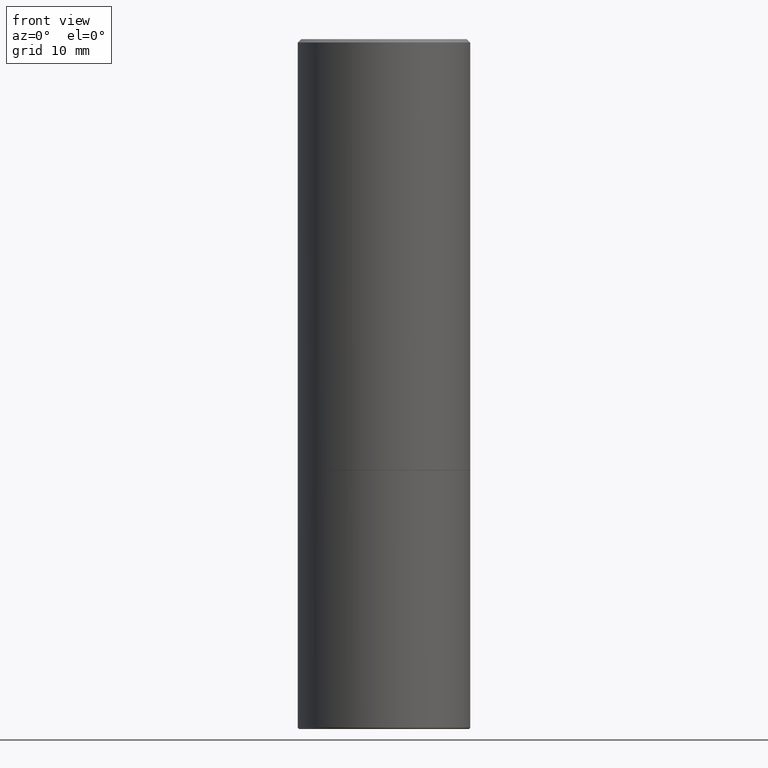
[diagram: clean part render]
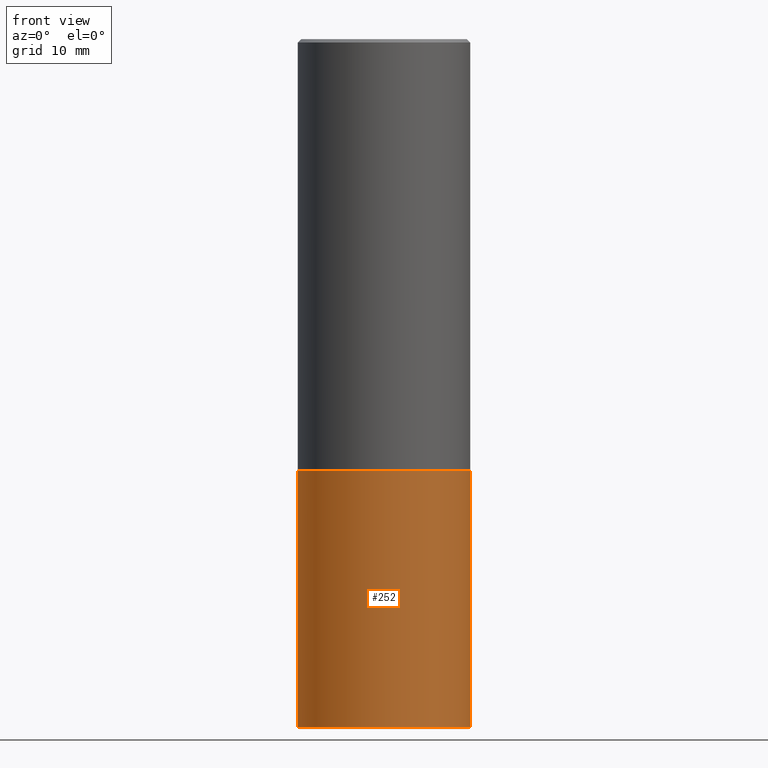
[diagram: same view with one face highlighted and labeled with its STEP entity id]
A machine part, front view. The second image highlights one B-rep face of the part: STEP entity #252.
In plain terms, the highlighted cylindrical surface (partial cylindrical patch) has radius 12.7 mm, axis along (-0, 0, 1).
Its self-contained STEP definition (entity closure, byte-faithful):
#11 = CIRCLE ( 'NONE', #177, 0.5000000000000000000 ) ;
#16 = CARTESIAN_POINT ( 'NONE',  ( -0.5000000000000000000, -1.037829686318364817E-14, -3.989999999999999769 ) ) ;
#21 = CARTESIAN_POINT ( 'NONE',  ( 0.5000000000000000000, -3.491481338843133355E-15, 2.438088387897967896E-29 ) ) ;
#22 = VECTOR ( 'NONE', #53, 39.37007874015748143 ) ;
#28 = AXIS2_PLACEMENT_3D ( 'NONE', #134, #276, #210 ) ;
#53 = DIRECTION ( 'NONE',  ( -2.445468806185136877E-29, 3.491481338843145188E-15, 1.000000000000000000 ) ) ;
#61 = DIRECTION ( 'NONE',  ( -2.445468806185136597E-29, 3.491481338843145583E-15, 1.000000000000000000 ) ) ;
#69 = CARTESIAN_POINT ( 'NONE',  ( -0.5000000000000000000, 3.552713678800500929E-15, -2.459467545127452891E-29 ) ) ;
#77 = ORIENTED_EDGE ( 'NONE', *, *, #186, .F. ) ;
#80 = VECTOR ( 'NONE', #108, 39.37007874015748143 ) ;
#95 = AXIS2_PLACEMENT_3D ( 'NONE', #224, #343, #249 ) ;
#107 = CARTESIAN_POINT ( 'NONE',  ( -0.5000000000000000000, -7.777143265745505305E-15, -2.500000000000000000 ) ) ;
#108 = DIRECTION ( 'NONE',  ( -2.445468806185136877E-29, 3.491481338843145188E-15, 1.000000000000000000 ) ) ;
#134 = CARTESIAN_POINT ( 'NONE',  ( 6.113672015462842613E-29, -8.728703347107864943E-15, -2.500000000000000000 ) ) ;
#135 = VERTEX_POINT ( 'NONE', #272 ) ;
#138 = CIRCLE ( 'NONE', #28, 0.5000000000000000000 ) ;
#171 = ORIENTED_EDGE ( 'NONE', *, *, #201, .T. ) ;
#177 = AXIS2_PLACEMENT_3D ( 'NONE', #396, #61, #243 ) ;
#186 = EDGE_CURVE ( 'NONE', #225, #135, #138, .T. ) ;
#201 = EDGE_CURVE ( 'NONE', #308, #363, #11, .T. ) ;
#210 = DIRECTION ( 'NONE',  ( 1.000000000000000000, -6.982962677686269077E-15, 0.000000000000000000 ) ) ;
#224 = CARTESIAN_POINT ( 'NONE',  ( 0.000000000000000000, 0.000000000000000000, 0.000000000000000000 ) ) ;
#225 = VERTEX_POINT ( 'NONE', #107 ) ;
#241 = EDGE_CURVE ( 'NONE', #308, #225, #337, .T. ) ;
#243 = DIRECTION ( 'NONE',  ( 1.000000000000000000, -6.982962677686266711E-15, 0.000000000000000000 ) ) ;
#249 = DIRECTION ( 'NONE',  ( 1.000000000000000000, -6.982962677686266711E-15, 4.876176775795935793E-29 ) ) ;
#252 = ADVANCED_FACE ( 'NONE', ( #282 ), #309, .T. ) ;
#272 = CARTESIAN_POINT ( 'NONE',  ( 0.5000000000000000000, -1.222018468595099830E-14, -2.500000000000000000 ) ) ;
#276 = DIRECTION ( 'NONE',  ( -2.445468806185136597E-29, 3.491481338843145583E-15, 1.000000000000000000 ) ) ;
#282 = FACE_OUTER_BOUND ( 'NONE', #287, .T. ) ;
#287 = EDGE_LOOP ( 'NONE', ( #330, #171, #336, #77 ) ) ;
#308 = VERTEX_POINT ( 'NONE', #16 ) ;
#309 = CYLINDRICAL_SURFACE ( 'NONE', #95, 0.5000000000000000000 ) ;
#316 = CARTESIAN_POINT ( 'NONE',  ( 0.5000000000000000000, -1.742249188082728404E-14, -3.989999999999999769 ) ) ;
#330 = ORIENTED_EDGE ( 'NONE', *, *, #241, .F. ) ;
#336 = ORIENTED_EDGE ( 'NONE', *, *, #381, .T. ) ;
#337 = LINE ( 'NONE', #69, #80 ) ;
#343 = DIRECTION ( 'NONE',  ( -2.445468806185136597E-29, 3.491481338843145583E-15, 1.000000000000000000 ) ) ;
#363 = VERTEX_POINT ( 'NONE', #316 ) ;
#381 = EDGE_CURVE ( 'NONE', #363, #135, #382, .T. ) ;
#382 = LINE ( 'NONE', #21, #22 ) ;
#396 = CARTESIAN_POINT ( 'NONE',  ( 9.757420536678694842E-29, -1.393101054198414910E-14, -3.989999999999999769 ) ) ;